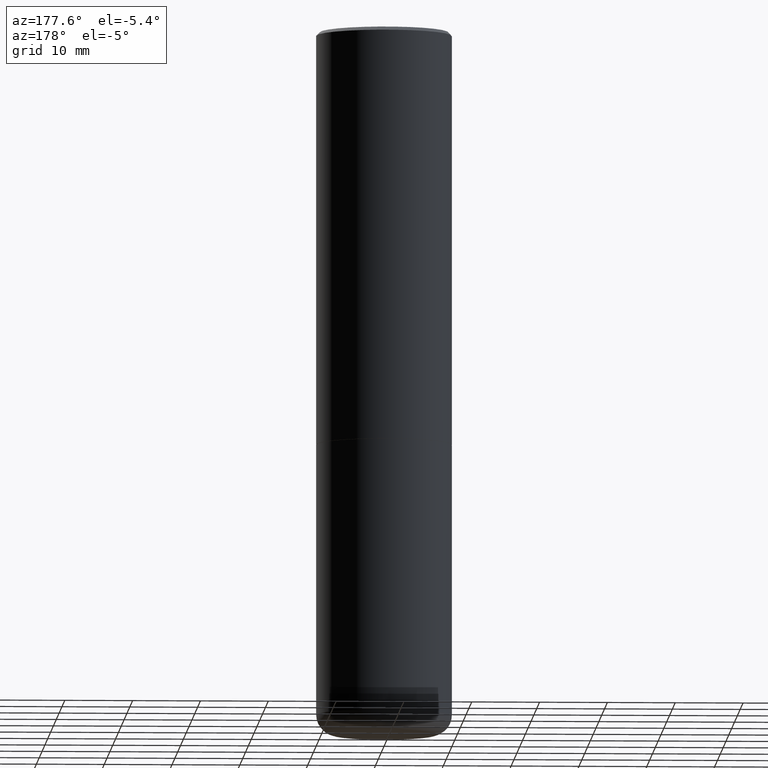
[diagram: clean part render]
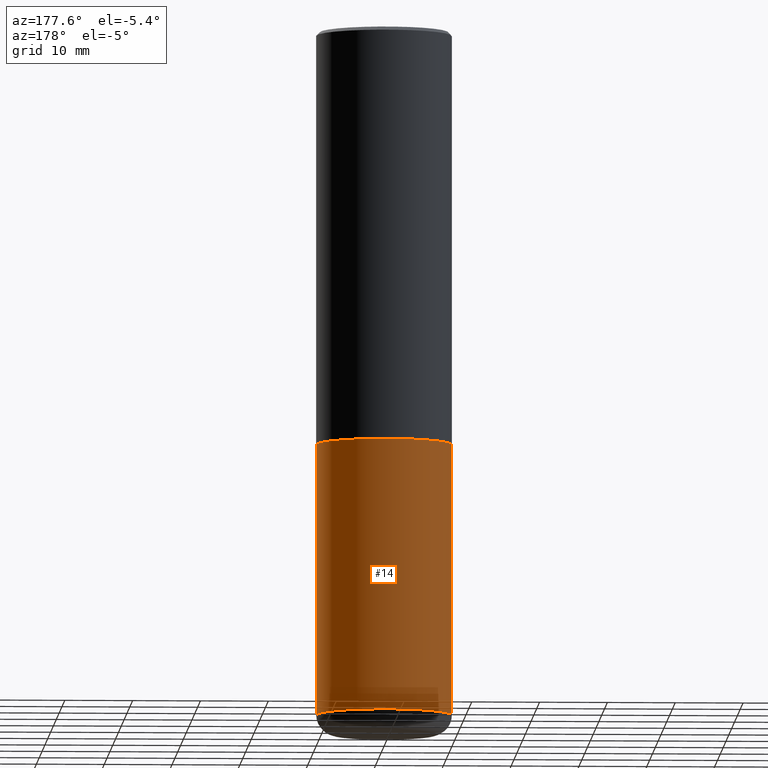
[diagram: same view with one face highlighted and labeled with its STEP entity id]
A machine part, auxiliary view. The second image highlights one B-rep face of the part: STEP entity #14.
In plain terms, the highlighted cylindrical surface (partial cylindrical patch) has radius 10 mm, axis along (-0, 0, 1).
Its self-contained STEP definition (entity closure, byte-faithful):
#14 = ADVANCED_FACE ( 'NONE', ( #362 ), #35, .T. ) ;
#24 = EDGE_LOOP ( 'NONE', ( #402, #286, #411, #353 ) ) ;
#32 = AXIS2_PLACEMENT_3D ( 'NONE', #227, #63, #198 ) ;
#35 = CYLINDRICAL_SURFACE ( 'NONE', #32, 0.3937000000000000499 ) ;
#36 = EDGE_CURVE ( 'NONE', #274, #77, #256, .T. ) ;
#48 = DIRECTION ( 'NONE',  ( 1.000000000000000000, -6.982962677686265133E-15, 0.000000000000000000 ) ) ;
#60 = CARTESIAN_POINT ( 'NONE',  ( -0.3937000000000000499, -8.336927238883277526E-15, -2.401600000000000179 ) ) ;
#63 = DIRECTION ( 'NONE',  ( -2.445468806185136597E-29, 3.491481338843145583E-15, 1.000000000000000000 ) ) ;
#68 = DIRECTION ( 'NONE',  ( -2.445468806185136877E-29, 3.491481338843145188E-15, 1.000000000000000000 ) ) ;
#70 = CARTESIAN_POINT ( 'NONE',  ( 0.3937000000000000499, -1.113433398957078206E-14, -2.401600000000000179 ) ) ;
#77 = VERTEX_POINT ( 'NONE', #60 ) ;
#97 = EDGE_CURVE ( 'NONE', #315, #127, #386, .T. ) ;
#111 = CARTESIAN_POINT ( 'NONE',  ( 5.873037884934224349E-29, -8.385141583365698841E-15, -2.401600000000000179 ) ) ;
#119 = EDGE_CURVE ( 'NONE', #315, #274, #176, .T. ) ;
#127 = VERTEX_POINT ( 'NONE', #70 ) ;
#134 = CIRCLE ( 'NONE', #207, 0.3937000000000000499 ) ;
#165 = DIRECTION ( 'NONE',  ( -2.445468806185136877E-29, 3.491481338843145188E-15, 1.000000000000000000 ) ) ;
#168 = CARTESIAN_POINT ( 'NONE',  ( -0.3937000000000000499, 2.797406750687514786E-15, -1.936584745033356735E-29 ) ) ;
#176 = CIRCLE ( 'NONE', #245, 0.3937000000000000499 ) ;
#198 = DIRECTION ( 'NONE',  ( 1.000000000000000000, -6.982962677686265922E-15, 4.876176775795935793E-29 ) ) ;
#207 = AXIS2_PLACEMENT_3D ( 'NONE', #111, #241, #48 ) ;
#227 = CARTESIAN_POINT ( 'NONE',  ( 0.000000000000000000, 0.000000000000000000, 0.000000000000000000 ) ) ;
#235 = CARTESIAN_POINT ( 'NONE',  ( 9.724162160914577144E-29, -1.388352639577588421E-14, -3.976400000000000379 ) ) ;
#241 = DIRECTION ( 'NONE',  ( -2.445468806185136597E-29, 3.491481338843145583E-15, 1.000000000000000000 ) ) ;
#245 = AXIS2_PLACEMENT_3D ( 'NONE', #235, #393, #366 ) ;
#256 = LINE ( 'NONE', #168, #382 ) ;
#274 = VERTEX_POINT ( 'NONE', #401 ) ;
#281 = EDGE_CURVE ( 'NONE', #127, #77, #134, .T. ) ;
#286 = ORIENTED_EDGE ( 'NONE', *, *, #36, .T. ) ;
#315 = VERTEX_POINT ( 'NONE', #346 ) ;
#346 = CARTESIAN_POINT ( 'NONE',  ( 0.3936999999999998834, -1.663271880198096585E-14, -3.976400000000000379 ) ) ;
#353 = ORIENTED_EDGE ( 'NONE', *, *, #97, .F. ) ;
#362 = FACE_OUTER_BOUND ( 'NONE', #24, .T. ) ;
#366 = DIRECTION ( 'NONE',  ( 1.000000000000000000, -6.982962677686267499E-15, 0.000000000000000000 ) ) ;
#382 = VECTOR ( 'NONE', #165, 39.37007874015748143 ) ;
#386 = LINE ( 'NONE', #392, #389 ) ;
#389 = VECTOR ( 'NONE', #68, 39.37007874015748143 ) ;
#392 = CARTESIAN_POINT ( 'NONE',  ( 0.3937000000000000499, -2.749192406205083217E-15, 1.919750796630860172E-29 ) ) ;
#393 = DIRECTION ( 'NONE',  ( -2.445468806185136597E-29, 3.491481338843145583E-15, 1.000000000000000000 ) ) ;
#401 = CARTESIAN_POINT ( 'NONE',  ( -0.3936999999999998834, -1.108611964508837021E-14, -3.976400000000000379 ) ) ;
#402 = ORIENTED_EDGE ( 'NONE', *, *, #119, .T. ) ;
#411 = ORIENTED_EDGE ( 'NONE', *, *, #281, .F. ) ;